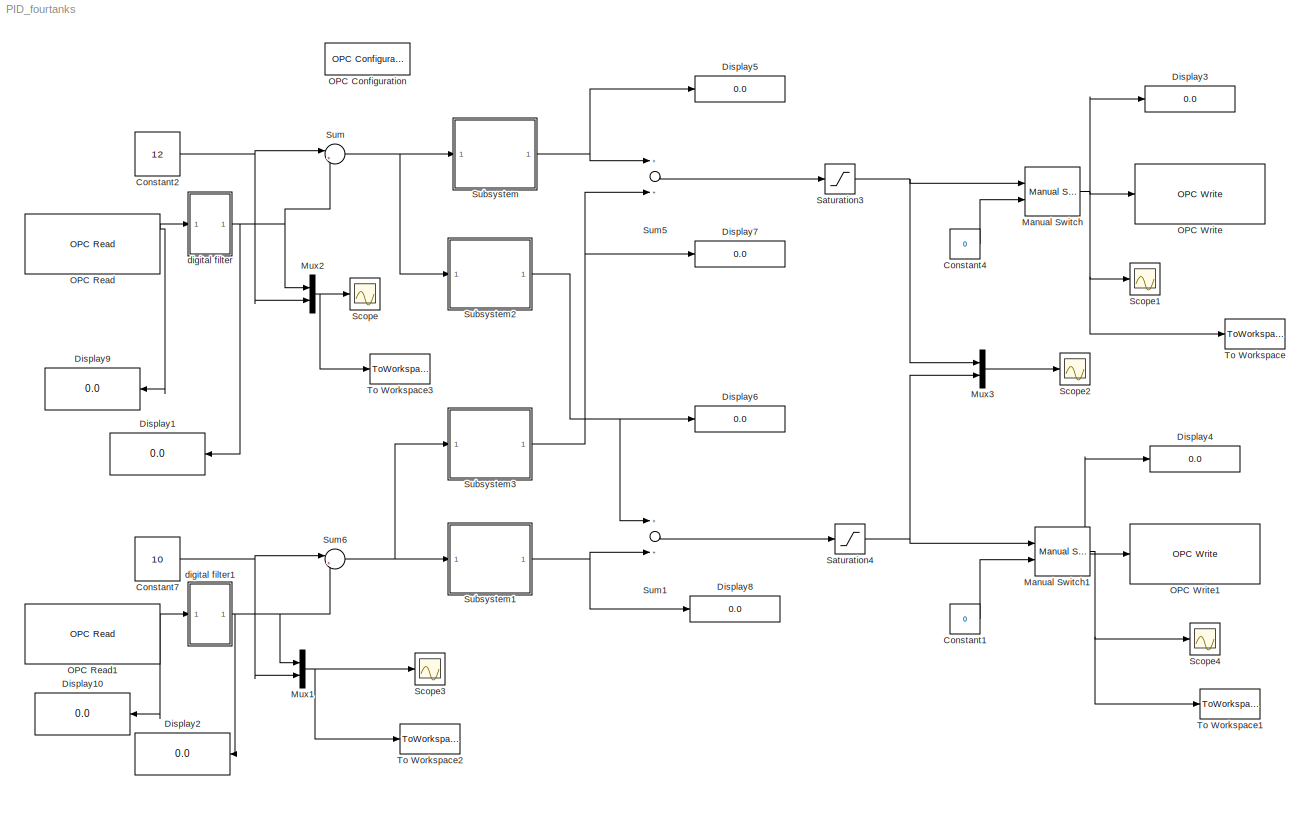
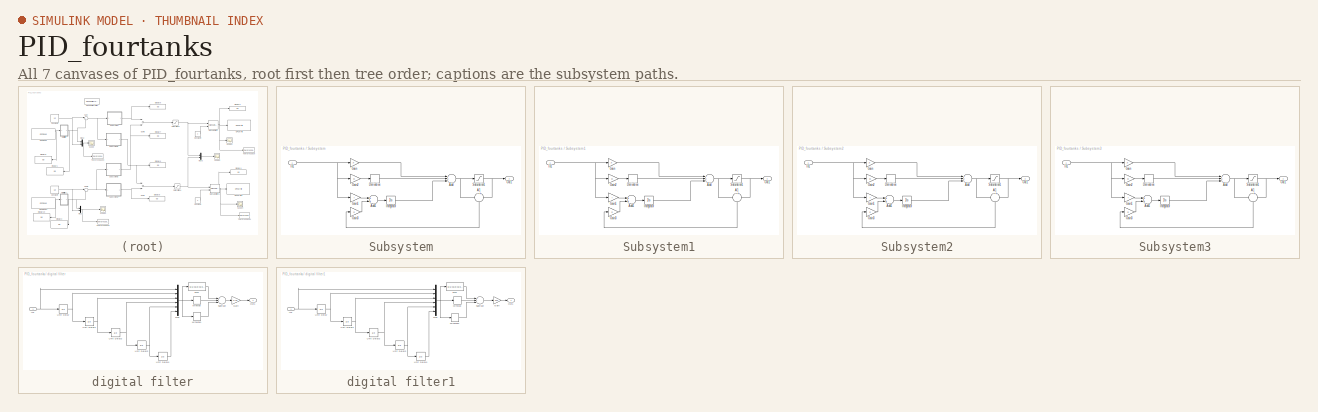
[diagram: thumbnail index - all 7 canvases of the model, root first then tree order]
MODEL PID_fourtanks
KIND model
BLOCK [Constant] Constant1
  SID = 1
  Value = 0
BLOCK [Constant] Constant2
  SID = 2
  Value = 12
BLOCK [Constant] Constant4
  SID = 3
  Value = 0
BLOCK [Constant] Constant7
  SID = 4
  Value = 10
BLOCK [Display] Display1
  Decimation = 1
  Lockdown = off
  Ports = [1]
  SID = 5
BLOCK [Display] Display10
  Decimation = 1
  Lockdown = off
  Ports = [1]
  SID = 87
BLOCK [Display] Display2
  Decimation = 1
  Lockdown = off
  Ports = [1]
  SID = 6
BLOCK [Display] Display3
  Decimation = 1
  Lockdown = off
  Ports = [1]
  SID = 7
BLOCK [Display] Display4
  Decimation = 1
  Lockdown = off
  Ports = [1]
  SID = 8
BLOCK [Display] Display5
  Decimation = 1
  Lockdown = off
  Ports = [1]
  SID = 9
BLOCK [Display] Display6
  Decimation = 1
  Lockdown = off
  Ports = [1]
  SID = 10
BLOCK [Display] Display7
  Decimation = 1
  Lockdown = off
  Ports = [1]
  SID = 11
BLOCK [Display] Display8
  Decimation = 1
  Lockdown = off
  Ports = [1]
  SID = 12
BLOCK [Display] Display9
  Decimation = 1
  Lockdown = off
  Ports = [1]
  SID = 85
BLOCK [Reference] Manual Switch  REF=simulink/Signal\nRouting/Manual Switch
  FunctionWithSeparateData = off
  GeneratePreprocessorConditionals = off
  Ports = [2, 1]
  RTWMemSecDataConstants = Inherit from model
  RTWMemSecDataInternal = Inherit from model
  RTWMemSecDataParameters = Inherit from model
  RTWMemSecFuncExecute = Inherit from model
  RTWMemSecFuncInitTerm = Inherit from model
  SID = 13
  ShowPortLabels = FromPortIcon
  SourceBlock = simulink/Signal\nRouting/Manual Switch
  SourceType = Manual Switch
  SystemSampleTime = -1
  action = 0
  sw = 1
  varsize = off
BLOCK [Reference] Manual Switch1  REF=simulink/Signal\nRouting/Manual Switch
  FunctionWithSeparateData = off
  GeneratePreprocessorConditionals = off
  Ports = [2, 1]
  RTWMemSecDataConstants = Inherit from model
  RTWMemSecDataInternal = Inherit from model
  RTWMemSecDataParameters = Inherit from model
  RTWMemSecFuncExecute = Inherit from model
  RTWMemSecFuncInitTerm = Inherit from model
  SID = 14
  ShowPortLabels = FromPortIcon
  SourceBlock = simulink/Signal\nRouting/Manual Switch
  SourceType = Manual Switch
  SystemSampleTime = -1
  action = 0
  sw = 1
  varsize = off
BLOCK [Mux] Mux1
  DisplayOption = bar
  Inputs = 2
  Ports = [2, 1]
  SID = 15
BLOCK [Mux] Mux2
  DisplayOption = bar
  Inputs = 2
  Ports = [2, 1]
  SID = 16
BLOCK [Mux] Mux3
  DisplayOption = bar
  Inputs = 2
  Ports = [2, 1]
  SID = 17
BLOCK [Reference] OPC Configuration  REF=opclib/OPC Configuration
  Ports = []
  SID = 18
  SourceBlock = opclib/OPC Configuration
  SourceType = OPC Configuration
  beingUsed = on
  errMissingItems = Error
  errRTViolation = None
  errReadWrite = Warn
  errShutdown = Error
  opcServers = localhost/OPCServer.WinCC/10
  rtEnable = on
  showLatency = off
  speedup = 1
BLOCK [Reference] OPC Read  REF=opclib/OPC Read
  Ports = [0, 3]
  SID = 19
  SourceBlock = opclib/OPC Read
  SourceType = OPC Read
  dataType = double
  itemIDs = shuiwei1
  readMode = Synchronous (cache)
  serverHost = localhost
  serverID = OPCServer.WinCC
  showQual = on
  showTS = on
  tsMode = Seconds since start
  updateRate = 0.01
BLOCK [Reference] OPC Read1  REF=opclib/OPC Read
  Ports = [0, 3]
  SID = 20
  SourceBlock = opclib/OPC Read
  SourceType = OPC Read
  dataType = double
  itemIDs = shuiwei2
  readMode = Synchronous (cache)
  serverHost = localhost
  serverID = OPCServer.WinCC
  showQual = on
  showTS = on
  tsMode = Seconds since start
  updateRate = 0.5
BLOCK [Reference] OPC Write  REF=opclib/OPC Write
  Ports = [1]
  SID = 21
  SourceBlock = opclib/OPC Write
  SourceType = OPC Write
  itemIDs = beng1
  serverHost = localhost
  serverID = OPCServer.WinCC
  updateRate = 0
  writeMode = Synchronous
BLOCK [Reference] OPC Write1  REF=opclib/OPC Write
  Ports = [1]
  SID = 22
  SourceBlock = opclib/OPC Write
  SourceType = OPC Write
  itemIDs = beng2
  serverHost = localhost
  serverID = OPCServer.WinCC
  updateRate = 0
  writeMode = Synchronous
BLOCK [Saturate] Saturation3
  InputPortMap = u0
  LowerLimit = 0
  Ports = [1, 1]
  SID = 23
  UpperLimit = 100
BLOCK [Saturate] Saturation4
  InputPortMap = u0
  LowerLimit = 0
  Ports = [1, 1]
  SID = 24
  UpperLimit = 100
BLOCK [Scope] Scope
  DataFormat = Array
  Floating = off
  LimitDataPoints = off
  NumInputPorts = 1
  Ports = [1]
  SID = 25
  SampleTime = 0
  SaveName = shuiwei1
  TimeRange = 1000
  YMax = 30
  YMin = 0
BLOCK [Scope] Scope1
  DataFormat = Array
  Floating = off
  LimitDataPoints = off
  NumInputPorts = 1
  Ports = [1]
  SID = 138
  SampleTime = 0
  SaveName = shuiwei
  SaveToWorkspace = on
  TimeRange = 1000
  YMax = 89.5
  YMin = 82.5
BLOCK [Scope] Scope2
  DataFormat = StructureWithTime
  Floating = off
  NumInputPorts = 1
  Ports = [1]
  SID = 26
  SampleTime = 0
  SaveName = ScopeData2
  TimeRange = 1000
  YMax = 52
  YMin = 40.5
BLOCK [Scope] Scope3
  DataFormat = Array
  Floating = off
  LimitDataPoints = off
  NumInputPorts = 1
  Ports = [1]
  SID = 27
  SampleTime = 0
  SaveName = shuiwei2
  TimeRange = 1000
  YMax = 20
  YMin = 0
BLOCK [Scope] Scope4
  DataFormat = Array
  Floating = off
  LimitDataPoints = off
  NumInputPorts = 1
  Ports = [1]
  SID = 139
  SampleTime = 0
  SaveName = shuiwei3
  SaveToWorkspace = on
  TimeRange = 1000
  YMax = 100
  YMin = 0
BLOCK [SubSystem] Subsystem
  FunctionWithSeparateData = off
  MaskCallbackString = |||
  MaskDisplay = disp('SPID\\nControl')
  MaskEnableString = on,on,on,on
  MaskHideContents = off
  MaskIconFrame = on
  MaskIconOpaque = on
  MaskIconRotate = none
  MaskIconUnits = autoscale
  MaskPortRotate = default
  MaskPromptString = proporation|integrator|derivative|antigain
  MaskStyleString = edit,edit,edit,edit
  MaskToolTipString = on,on,on,on
  MaskTunableValueString = on,on,on,on
  MaskValueString = 6|0.4|0|0.2
  MaskVariables = P=@1;I=@2;D=@3;S=@4;
  MaskVisibilityString = on,on,on,on
  MinAlgLoopOccurrences = off
  Opaque = off
  Ports = [1, 1]
  PropExecContextOutsideSubsystem = off
  RTWSystemCode = Auto
  RequestExecContextInheritance = off
  SID = 28
BLOCK [Sum] Subsystem/A1
  IconShape = round
  InputSameDT = off
  Inputs = -+
  OutDataTypeStr = Inherit: Inherit via internal rule
  Ports = [2, 1]
  SID = 30
  SaturateOnIntegerOverflow = off
BLOCK [Sum] Subsystem/Add
  InputSameDT = off
  Inputs = +++
  OutDataTypeStr = Inherit: Inherit via internal rule
  Ports = [3, 1]
  SID = 31
  SaturateOnIntegerOverflow = off
BLOCK [Sum] Subsystem/Add1
  InputSameDT = off
  OutDataTypeStr = Inherit: Inherit via internal rule
  Ports = [2, 1]
  SID = 32
  SaturateOnIntegerOverflow = off
BLOCK [Derivative] Subsystem/Derivative
  SID = 33
BLOCK [Gain] Subsystem/Gain
  Gain = P
  OutDataTypeStr = Inherit: Inherit via internal rule
  ParamDataTypeStr = Inherit: Inherit via internal rule
  SID = 34
  SaturateOnIntegerOverflow = off
BLOCK [Gain] Subsystem/Gain1
  Gain = I
  OutDataTypeStr = Inherit: Inherit via internal rule
  ParamDataTypeStr = Inherit: Inherit via internal rule
  SID = 35
  SaturateOnIntegerOverflow = off
BLOCK [Gain] Subsystem/Gain2
  Gain = D
  OutDataTypeStr = Inherit: Inherit via internal rule
  ParamDataTypeStr = Inherit: Inherit via internal rule
  SID = 36
  SaturateOnIntegerOverflow = off
BLOCK [Gain] Subsystem/Gain3
  Gain = S
  OutDataTypeStr = Inherit: Inherit via internal rule
  ParamDataTypeStr = Inherit: Inherit via internal rule
  SID = 37
  SaturateOnIntegerOverflow = off
BLOCK [Inport] Subsystem/In1
  IconDisplay = Port number
  SID = 29
BLOCK [Integrator] Subsystem/Integrator
  Ports = [1, 1]
  SID = 38
BLOCK [Outport] Subsystem/Out1
  IconDisplay = Port number
  SID = 40
BLOCK [Saturate] Subsystem/Saturation1
  InputPortMap = u0
  LowerLimit = 0
  Ports = [1, 1]
  SID = 39
  UpperLimit = 75
BLOCK [SubSystem] Subsystem1
  FunctionWithSeparateData = off
  MaskCallbackString = |||
  MaskDisplay = disp('SPID\\nControl')
  MaskEnableString = on,on,on,on
  MaskHideContents = off
  MaskIconFrame = on
  MaskIconOpaque = on
  MaskIconRotate = none
  MaskIconUnits = autoscale
  MaskPortRotate = default
  MaskPromptString = proporation|integrator|derivative|antigain
  MaskStyleString = edit,edit,edit,edit
  MaskToolTipString = on,on,on,on
  MaskTunableValueString = on,on,on,on
  MaskValueString = 5|0.4|0|0.2
  MaskVariables = P=@1;I=@2;D=@3;S=@4;
  MaskVisibilityString = on,on,on,on
  MinAlgLoopOccurrences = off
  Opaque = off
  Ports = [1, 1]
  PropExecContextOutsideSubsystem = off
  RTWSystemCode = Auto
  RequestExecContextInheritance = off
  SID = 41
BLOCK [Sum] Subsystem1/A1
  IconShape = round
  InputSameDT = off
  Inputs = -+
  OutDataTypeStr = Inherit: Inherit via internal rule
  Ports = [2, 1]
  SID = 43
  SaturateOnIntegerOverflow = off
BLOCK [Sum] Subsystem1/Add
  InputSameDT = off
  Inputs = +++
  OutDataTypeStr = Inherit: Inherit via internal rule
  Ports = [3, 1]
  SID = 44
  SaturateOnIntegerOverflow = off
BLOCK [Sum] Subsystem1/Add1
  InputSameDT = off
  OutDataTypeStr = Inherit: Inherit via internal rule
  Ports = [2, 1]
  SID = 45
  SaturateOnIntegerOverflow = off
BLOCK [Derivative] Subsystem1/Derivative
  SID = 46
BLOCK [Gain] Subsystem1/Gain
  Gain = P
  OutDataTypeStr = Inherit: Inherit via internal rule
  ParamDataTypeStr = Inherit: Inherit via internal rule
  SID = 47
  SaturateOnIntegerOverflow = off
BLOCK [Gain] Subsystem1/Gain1
  Gain = I
  OutDataTypeStr = Inherit: Inherit via internal rule
  ParamDataTypeStr = Inherit: Inherit via internal rule
  SID = 48
  SaturateOnIntegerOverflow = off
BLOCK [Gain] Subsystem1/Gain2
  Gain = D
  OutDataTypeStr = Inherit: Inherit via internal rule
  ParamDataTypeStr = Inherit: Inherit via internal rule
  SID = 49
  SaturateOnIntegerOverflow = off
BLOCK [Gain] Subsystem1/Gain3
  Gain = S
  OutDataTypeStr = Inherit: Inherit via internal rule
  ParamDataTypeStr = Inherit: Inherit via internal rule
  SID = 50
  SaturateOnIntegerOverflow = off
BLOCK [Inport] Subsystem1/In1
  IconDisplay = Port number
  SID = 42
BLOCK [Integrator] Subsystem1/Integrator
  Ports = [1, 1]
  SID = 51
BLOCK [Outport] Subsystem1/Out1
  IconDisplay = Port number
  SID = 53
BLOCK [Saturate] Subsystem1/Saturation1
  InputPortMap = u0
  LowerLimit = 0
  Ports = [1, 1]
  SID = 52
  UpperLimit = 75
BLOCK [SubSystem] Subsystem2
  FunctionWithSeparateData = off
  MaskCallbackString = |||
  MaskDisplay = disp('SPID\\nControl')
  MaskEnableString = on,on,on,on
  MaskHideContents = off
  MaskIconFrame = on
  MaskIconOpaque = on
  MaskIconRotate = none
  MaskIconUnits = autoscale
  MaskPortRotate = default
  MaskPromptString = proporation|integrator|derivative|antigain
  MaskStyleString = edit,edit,edit,edit
  MaskToolTipString = on,on,on,on
  MaskTunableValueString = on,on,on,on
  MaskValueString = 3|0.2|0|1
  MaskVariables = P=@1;I=@2;D=@3;S=@4;
  MaskVisibilityString = on,on,on,on
  MinAlgLoopOccurrences = off
  Opaque = off
  Ports = [1, 1]
  PropExecContextOutsideSubsystem = off
  RTWSystemCode = Auto
  RequestExecContextInheritance = off
  SID = 54
BLOCK [Sum] Subsystem2/A1
  IconShape = round
  InputSameDT = off
  Inputs = -+
  OutDataTypeStr = Inherit: Inherit via internal rule
  Ports = [2, 1]
  SID = 56
  SaturateOnIntegerOverflow = off
BLOCK [Sum] Subsystem2/Add
  InputSameDT = off
  Inputs = +++
  OutDataTypeStr = Inherit: Inherit via internal rule
  Ports = [3, 1]
  SID = 57
  SaturateOnIntegerOverflow = off
BLOCK [Sum] Subsystem2/Add1
  InputSameDT = off
  OutDataTypeStr = Inherit: Inherit via internal rule
  Ports = [2, 1]
  SID = 58
  SaturateOnIntegerOverflow = off
BLOCK [Derivative] Subsystem2/Derivative
  SID = 59
BLOCK [Gain] Subsystem2/Gain
  Gain = P
  OutDataTypeStr = Inherit: Inherit via internal rule
  ParamDataTypeStr = Inherit: Inherit via internal rule
  SID = 60
  SaturateOnIntegerOverflow = off
BLOCK [Gain] Subsystem2/Gain1
  Gain = I
  OutDataTypeStr = Inherit: Inherit via internal rule
  ParamDataTypeStr = Inherit: Inherit via internal rule
  SID = 61
  SaturateOnIntegerOverflow = off
BLOCK [Gain] Subsystem2/Gain2
  Gain = D
  OutDataTypeStr = Inherit: Inherit via internal rule
  ParamDataTypeStr = Inherit: Inherit via internal rule
  SID = 62
  SaturateOnIntegerOverflow = off
BLOCK [Gain] Subsystem2/Gain3
  Gain = S
  OutDataTypeStr = Inherit: Inherit via internal rule
  ParamDataTypeStr = Inherit: Inherit via internal rule
  SID = 63
  SaturateOnIntegerOverflow = off
BLOCK [Inport] Subsystem2/In1
  IconDisplay = Port number
  SID = 55
BLOCK [Integrator] Subsystem2/Integrator
  Ports = [1, 1]
  SID = 64
BLOCK [Outport] Subsystem2/Out1
  IconDisplay = Port number
  SID = 66
BLOCK [Saturate] Subsystem2/Saturation1
  InputPortMap = u0
  LowerLimit = -25
  Ports = [1, 1]
  SID = 65
  UpperLimit = 25
BLOCK [SubSystem] Subsystem3
  FunctionWithSeparateData = off
  MaskCallbackString = |||
  MaskDisplay = disp('SPID\\nControl')
  MaskEnableString = on,on,on,on
  MaskHideContents = off
  MaskIconFrame = on
  MaskIconOpaque = on
  MaskIconRotate = none
  MaskIconUnits = autoscale
  MaskPortRotate = default
  MaskPromptString = proporation|integrator|derivative|antigain
  MaskStyleString = edit,edit,edit,edit
  MaskToolTipString = on,on,on,on
  MaskTunableValueString = on,on,on,on
  MaskValueString = 3|0.2|0|0.2
  MaskVariables = P=@1;I=@2;D=@3;S=@4;
  MaskVisibilityString = on,on,on,on
  MinAlgLoopOccurrences = off
  Opaque = off
  Ports = [1, 1]
  PropExecContextOutsideSubsystem = off
  RTWSystemCode = Auto
  RequestExecContextInheritance = off
  SID = 67
BLOCK [Sum] Subsystem3/A1
  IconShape = round
  InputSameDT = off
  Inputs = -+
  OutDataTypeStr = Inherit: Inherit via internal rule
  Ports = [2, 1]
  SID = 69
  SaturateOnIntegerOverflow = off
BLOCK [Sum] Subsystem3/Add
  InputSameDT = off
  Inputs = +++
  OutDataTypeStr = Inherit: Inherit via internal rule
  Ports = [3, 1]
  SID = 70
  SaturateOnIntegerOverflow = off
BLOCK [Sum] Subsystem3/Add1
  InputSameDT = off
  OutDataTypeStr = Inherit: Inherit via internal rule
  Ports = [2, 1]
  SID = 71
  SaturateOnIntegerOverflow = off
BLOCK [Derivative] Subsystem3/Derivative
  SID = 72
BLOCK [Gain] Subsystem3/Gain
  Gain = P
  OutDataTypeStr = Inherit: Inherit via internal rule
  ParamDataTypeStr = Inherit: Inherit via internal rule
  SID = 73
  SaturateOnIntegerOverflow = off
BLOCK [Gain] Subsystem3/Gain1
  Gain = I
  OutDataTypeStr = Inherit: Inherit via internal rule
  ParamDataTypeStr = Inherit: Inherit via internal rule
  SID = 74
  SaturateOnIntegerOverflow = off
BLOCK [Gain] Subsystem3/Gain2
  Gain = D
  OutDataTypeStr = Inherit: Inherit via internal rule
  ParamDataTypeStr = Inherit: Inherit via internal rule
  SID = 75
  SaturateOnIntegerOverflow = off
BLOCK [Gain] Subsystem3/Gain3
  Gain = S
  OutDataTypeStr = Inherit: Inherit via internal rule
  ParamDataTypeStr = Inherit: Inherit via internal rule
  SID = 76
  SaturateOnIntegerOverflow = off
BLOCK [Inport] Subsystem3/In1
  IconDisplay = Port number
  SID = 68
BLOCK [Integrator] Subsystem3/Integrator
  Ports = [1, 1]
  SID = 77
BLOCK [Outport] Subsystem3/Out1
  IconDisplay = Port number
  SID = 79
BLOCK [Saturate] Subsystem3/Saturation1
  InputPortMap = u0
  LowerLimit = -25
  Ports = [1, 1]
  SID = 78
  UpperLimit = 25
BLOCK [Sum] Sum
  IconShape = round
  InputSameDT = off
  Inputs = |+-
  OutDataTypeStr = Inherit: Inherit via internal rule
  Ports = [2, 1]
  SID = 80
  SaturateOnIntegerOverflow = off
BLOCK [Sum] Sum1
  InputSameDT = off
  OutDataTypeStr = Inherit: Inherit via internal rule
  Ports = [2, 1]
  SID = 81
  SaturateOnIntegerOverflow = off
BLOCK [Sum] Sum5
  InputSameDT = off
  OutDataTypeStr = Inherit: Inherit via internal rule
  Ports = [2, 1]
  SID = 82
  SaturateOnIntegerOverflow = off
BLOCK [Sum] Sum6
  IconShape = round
  InputSameDT = off
  Inputs = |+-
  OutDataTypeStr = Inherit: Inherit via internal rule
  Ports = [2, 1]
  SID = 83
  SaturateOnIntegerOverflow = off
BLOCK [ToWorkspace] To Workspace
  MaxDataPoints = inf
  Ports = [1]
  SID = 192
  SampleTime = 0.5
  SaveFormat = Array
  VariableName = beng1
BLOCK [ToWorkspace] To Workspace1
  MaxDataPoints = inf
  Ports = [1]
  SID = 193
  SampleTime = 0.5
  SaveFormat = Array
  VariableName = beng2
BLOCK [ToWorkspace] To Workspace2
  MaxDataPoints = inf
  Ports = [1]
  SID = 195
  SampleTime = 0.5
  SaveFormat = Array
  VariableName = shuiwei2
BLOCK [ToWorkspace] To Workspace3
  MaxDataPoints = inf
  Ports = [1]
  SID = 197
  SampleTime = 0.5
  SaveFormat = Array
  VariableName = shuiwei1
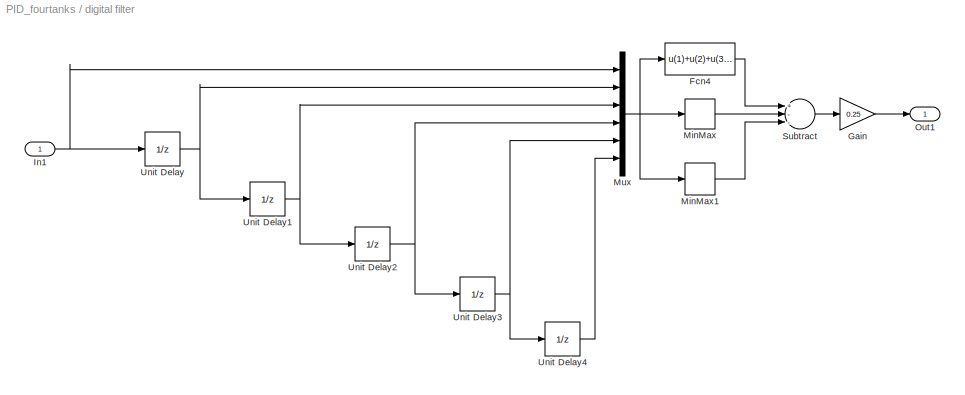
BLOCK [SubSystem] digital filter
  FunctionWithSeparateData = off
  MaskHideContents = off
  MinAlgLoopOccurrences = off
  Opaque = off
  Ports = [1, 1]
  PropExecContextOutsideSubsystem = off
  RTWSystemCode = Auto
  RequestExecContextInheritance = off
  SID = 88
BLOCK [Fcn] digital filter/Fcn4
  Expr = u(1)+u(2)+u(3)+u(4)+u(5)+u(6)
  SID = 121
  SampleTime = 0.5
BLOCK [Gain] digital filter/Gain
  Gain = 0.25
  OutDataTypeStr = Inherit: Inherit via internal rule
  ParamDataTypeStr = Inherit: Inherit via internal rule
  SID = 93
  SaturateOnIntegerOverflow = off
BLOCK [Inport] digital filter/In1
  IconDisplay = Port number
  SID = 89
BLOCK [MinMax] digital filter/MinMax
  Function = min
  InputSameDT = off
  Ports = [1, 1]
  SID = 122
  SaturateOnIntegerOverflow = off
BLOCK [MinMax] digital filter/MinMax1
  Function = max
  InputSameDT = off
  Ports = [1, 1]
  SID = 123
  SaturateOnIntegerOverflow = off
BLOCK [Mux] digital filter/Mux
  DisplayOption = bar
  Inputs = 6
  Ports = [6, 1]
  SID = 94
BLOCK [Outport] digital filter/Out1
  IconDisplay = Port number
  SID = 101
BLOCK [Sum] digital filter/Subtract
  InputSameDT = off
  Inputs = +--
  OutDataTypeStr = Inherit: Inherit via internal rule
  Ports = [3, 1]
  SID = 95
  SaturateOnIntegerOverflow = off
BLOCK [UnitDelay] digital filter/Unit Delay
  InputProcessing = Elements as channels (sample based)
  SID = 96
  SampleTime = 0.5
BLOCK [UnitDelay] digital filter/Unit Delay1
  InputProcessing = Elements as channels (sample based)
  SID = 97
  SampleTime = 0.5
BLOCK [UnitDelay] digital filter/Unit Delay2
  InputProcessing = Elements as channels (sample based)
  SID = 98
  SampleTime = 0.5
BLOCK [UnitDelay] digital filter/Unit Delay3
  InputProcessing = Elements as channels (sample based)
  SID = 99
  SampleTime = 0.5
BLOCK [UnitDelay] digital filter/Unit Delay4
  InputProcessing = Elements as channels (sample based)
  SID = 100
  SampleTime = 0.5
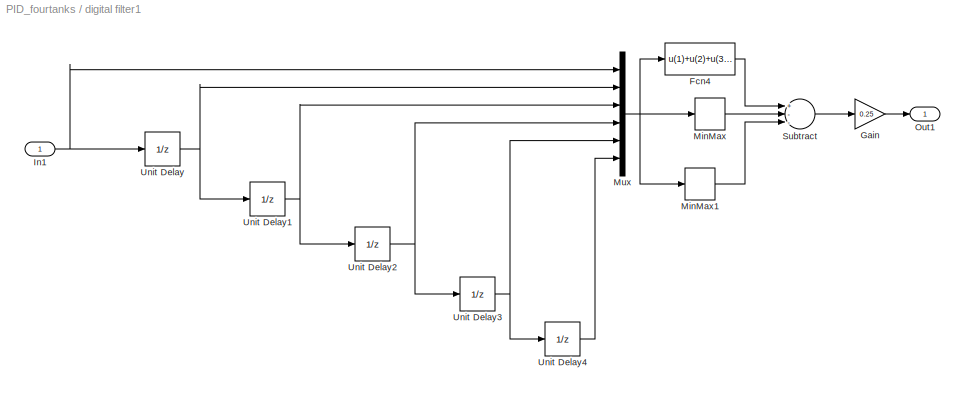
BLOCK [SubSystem] digital filter1
  FunctionWithSeparateData = off
  MaskHideContents = off
  MinAlgLoopOccurrences = off
  Opaque = off
  Ports = [1, 1]
  PropExecContextOutsideSubsystem = off
  RTWSystemCode = Auto
  RequestExecContextInheritance = off
  SID = 124
BLOCK [Fcn] digital filter1/Fcn4
  Expr = u(1)+u(2)+u(3)+u(4)+u(5)+u(6)
  SID = 126
  SampleTime = 0.5
BLOCK [Gain] digital filter1/Gain
  Gain = 0.25
  OutDataTypeStr = Inherit: Inherit via internal rule
  ParamDataTypeStr = Inherit: Inherit via internal rule
  SID = 127
  SaturateOnIntegerOverflow = off
BLOCK [Inport] digital filter1/In1
  IconDisplay = Port number
  SID = 125
BLOCK [MinMax] digital filter1/MinMax
  Function = min
  InputSameDT = off
  Ports = [1, 1]
  SID = 128
  SaturateOnIntegerOverflow = off
BLOCK [MinMax] digital filter1/MinMax1
  Function = max
  InputSameDT = off
  Ports = [1, 1]
  SID = 129
  SaturateOnIntegerOverflow = off
BLOCK [Mux] digital filter1/Mux
  DisplayOption = bar
  Inputs = 6
  Ports = [6, 1]
  SID = 130
BLOCK [Outport] digital filter1/Out1
  IconDisplay = Port number
  SID = 137
BLOCK [Sum] digital filter1/Subtract
  InputSameDT = off
  Inputs = +--
  OutDataTypeStr = Inherit: Inherit via internal rule
  Ports = [3, 1]
  SID = 131
  SaturateOnIntegerOverflow = off
BLOCK [UnitDelay] digital filter1/Unit Delay
  InputProcessing = Elements as channels (sample based)
  SID = 132
  SampleTime = 0.5
BLOCK [UnitDelay] digital filter1/Unit Delay1
  InputProcessing = Elements as channels (sample based)
  SID = 133
  SampleTime = 0.5
BLOCK [UnitDelay] digital filter1/Unit Delay2
  InputProcessing = Elements as channels (sample based)
  SID = 134
  SampleTime = 0.5
BLOCK [UnitDelay] digital filter1/Unit Delay3
  InputProcessing = Elements as channels (sample based)
  SID = 135
  SampleTime = 0.5
BLOCK [UnitDelay] digital filter1/Unit Delay4
  InputProcessing = Elements as channels (sample based)
  SID = 136
  SampleTime = 0.5
LINE Constant1:1 -> Manual Switch1:2
NET Constant2:1 -> Mux2:2, Sum:1
LINE Constant4:1 -> Manual Switch:2
NET Constant7:1 -> Mux1:2, Sum6:1
NET Manual Switch1:1 -> Display4:1, OPC Write1:1, Scope4:1, To Workspace1:1
NET Manual Switch:1 -> Display3:1, OPC Write:1, Scope1:1, To Workspace:1
NET Mux1:1 -> Scope3:1, To Workspace2:1
NET Mux2:1 -> Scope:1, To Workspace3:1
LINE Mux3:1 -> Scope2:1
NET OPC Read1:1 -> Display10:1, digital filter1:1
NET OPC Read:1 -> Display9:1, digital filter:1
NET Saturation3:1 -> Manual Switch:1, Mux3:1
NET Saturation4:1 -> Manual Switch1:1, Mux3:2
LINE Subsystem/A1:1 -> Subsystem/Gain3:1
LINE Subsystem/Add1:1 -> Subsystem/Integrator:1
NET Subsystem/Add:1 -> Subsystem/A1:1, Subsystem/Saturation1:1
LINE Subsystem/Derivative:1 -> Subsystem/Add:2
LINE Subsystem/Gain1:1 -> Subsystem/Add1:1
LINE Subsystem/Gain2:1 -> Subsystem/Derivative:1
LINE Subsystem/Gain3:1 -> Subsystem/Add1:2
LINE Subsystem/Gain:1 -> Subsystem/Add:1
NET Subsystem/In1:1 -> Subsystem/Gain1:1, Subsystem/Gain2:1, Subsystem/Gain:1
LINE Subsystem/Integrator:1 -> Subsystem/Add:3
NET Subsystem/Saturation1:1 -> Subsystem/A1:2, Subsystem/Out1:1
LINE Subsystem1/A1:1 -> Subsystem1/Gain3:1
LINE Subsystem1/Add1:1 -> Subsystem1/Integrator:1
NET Subsystem1/Add:1 -> Subsystem1/A1:1, Subsystem1/Saturation1:1
LINE Subsystem1/Derivative:1 -> Subsystem1/Add:2
LINE Subsystem1/Gain1:1 -> Subsystem1/Add1:1
LINE Subsystem1/Gain2:1 -> Subsystem1/Derivative:1
LINE Subsystem1/Gain3:1 -> Subsystem1/Add1:2
LINE Subsystem1/Gain:1 -> Subsystem1/Add:1
NET Subsystem1/In1:1 -> Subsystem1/Gain1:1, Subsystem1/Gain2:1, Subsystem1/Gain:1
LINE Subsystem1/Integrator:1 -> Subsystem1/Add:3
NET Subsystem1/Saturation1:1 -> Subsystem1/A1:2, Subsystem1/Out1:1
NET Subsystem1:1 -> Display8:1, Sum1:2
LINE Subsystem2/A1:1 -> Subsystem2/Gain3:1
LINE Subsystem2/Add1:1 -> Subsystem2/Integrator:1
NET Subsystem2/Add:1 -> Subsystem2/A1:1, Subsystem2/Saturation1:1
LINE Subsystem2/Derivative:1 -> Subsystem2/Add:2
LINE Subsystem2/Gain1:1 -> Subsystem2/Add1:1
LINE Subsystem2/Gain2:1 -> Subsystem2/Derivative:1
LINE Subsystem2/Gain3:1 -> Subsystem2/Add1:2
LINE Subsystem2/Gain:1 -> Subsystem2/Add:1
NET Subsystem2/In1:1 -> Subsystem2/Gain1:1, Subsystem2/Gain2:1, Subsystem2/Gain:1
LINE Subsystem2/Integrator:1 -> Subsystem2/Add:3
NET Subsystem2/Saturation1:1 -> Subsystem2/A1:2, Subsystem2/Out1:1
NET Subsystem2:1 -> Display6:1, Sum1:1
LINE Subsystem3/A1:1 -> Subsystem3/Gain3:1
LINE Subsystem3/Add1:1 -> Subsystem3/Integrator:1
NET Subsystem3/Add:1 -> Subsystem3/A1:1, Subsystem3/Saturation1:1
LINE Subsystem3/Derivative:1 -> Subsystem3/Add:2
LINE Subsystem3/Gain1:1 -> Subsystem3/Add1:1
LINE Subsystem3/Gain2:1 -> Subsystem3/Derivative:1
LINE Subsystem3/Gain3:1 -> Subsystem3/Add1:2
LINE Subsystem3/Gain:1 -> Subsystem3/Add:1
NET Subsystem3/In1:1 -> Subsystem3/Gain1:1, Subsystem3/Gain2:1, Subsystem3/Gain:1
LINE Subsystem3/Integrator:1 -> Subsystem3/Add:3
NET Subsystem3/Saturation1:1 -> Subsystem3/A1:2, Subsystem3/Out1:1
NET Subsystem3:1 -> Display7:1, Sum5:2
NET Subsystem:1 -> Display5:1, Sum5:1
LINE Sum1:1 -> Saturation4:1
LINE Sum5:1 -> Saturation3:1
NET Sum6:1 -> Subsystem1:1, Subsystem3:1
NET Sum:1 -> Subsystem2:1, Subsystem:1
LINE digital filter/Fcn4:1 -> digital filter/Subtract:1
LINE digital filter/Gain:1 -> digital filter/Out1:1
NET digital filter/In1:1 -> digital filter/Mux:1, digital filter/Unit Delay:1
LINE digital filter/MinMax1:1 -> digital filter/Subtract:3
LINE digital filter/MinMax:1 -> digital filter/Subtract:2
NET digital filter/Mux:1 -> digital filter/Fcn4:1, digital filter/MinMax1:1, digital filter/MinMax:1
LINE digital filter/Subtract:1 -> digital filter/Gain:1
NET digital filter/Unit Delay1:1 -> digital filter/Mux:3, digital filter/Unit Delay2:1
NET digital filter/Unit Delay2:1 -> digital filter/Mux:4, digital filter/Unit Delay3:1
NET digital filter/Unit Delay3:1 -> digital filter/Mux:5, digital filter/Unit Delay4:1
LINE digital filter/Unit Delay4:1 -> digital filter/Mux:6
NET digital filter/Unit Delay:1 -> digital filter/Mux:2, digital filter/Unit Delay1:1
LINE digital filter1/Fcn4:1 -> digital filter1/Subtract:1
LINE digital filter1/Gain:1 -> digital filter1/Out1:1
NET digital filter1/In1:1 -> digital filter1/Mux:1, digital filter1/Unit Delay:1
LINE digital filter1/MinMax1:1 -> digital filter1/Subtract:3
LINE digital filter1/MinMax:1 -> digital filter1/Subtract:2
NET digital filter1/Mux:1 -> digital filter1/Fcn4:1, digital filter1/MinMax1:1, digital filter1/MinMax:1
LINE digital filter1/Subtract:1 -> digital filter1/Gain:1
NET digital filter1/Unit Delay1:1 -> digital filter1/Mux:3, digital filter1/Unit Delay2:1
NET digital filter1/Unit Delay2:1 -> digital filter1/Mux:4, digital filter1/Unit Delay3:1
NET digital filter1/Unit Delay3:1 -> digital filter1/Mux:5, digital filter1/Unit Delay4:1
LINE digital filter1/Unit Delay4:1 -> digital filter1/Mux:6
NET digital filter1/Unit Delay:1 -> digital filter1/Mux:2, digital filter1/Unit Delay1:1
NET digital filter1:1 -> Display2:1, Mux1:1, Sum6:2
NET digital filter:1 -> Display1:1, Mux2:1, Sum:2
note: NET lines group one-source signal fan-out (src -> all destinations, sorted); 1:1 wires keep LINE
